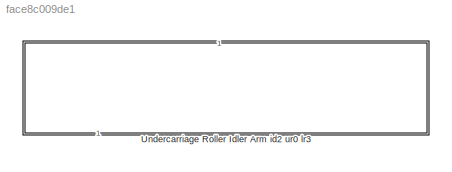
MODEL slx_face8c009de1
KIND library
CONFIG SolverName = VariableStepAuto
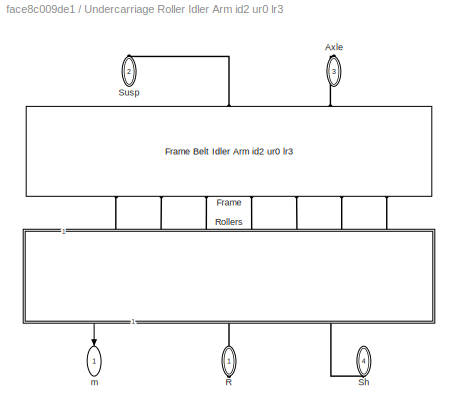
BLOCK [SubSystem] Undercarriage Roller Idler Arm id2 ur0 lr3
  NameLocation = left
BLOCK [PMIOPort] Undercarriage Roller Idler Arm id2 ur0 lr3/Axle
  NameLocation = left
  Port = 3
  Side = Right
BLOCK [Reference] Undercarriage Roller Idler Arm id2 ur0 lr3/Frame  REF=sm_trackV_lib_frame_idlerArm_i2u0l3/Frame Belt
Idler Arm
id2 ur0 lr3
  NameLocation = left
  SourceBlock = sm_trackV_lib_frame_idlerArm_i2u0l3/Frame Belt\nIdler Arm\nid2 ur0 lr3
  SourceType = Frame for Sprocket, Rollers (3), Fixed Idler, Idler Arm
BLOCK [PMIOPort] Undercarriage Roller Idler Arm id2 ur0 lr3/R
  NameLocation = left
  Side = Right
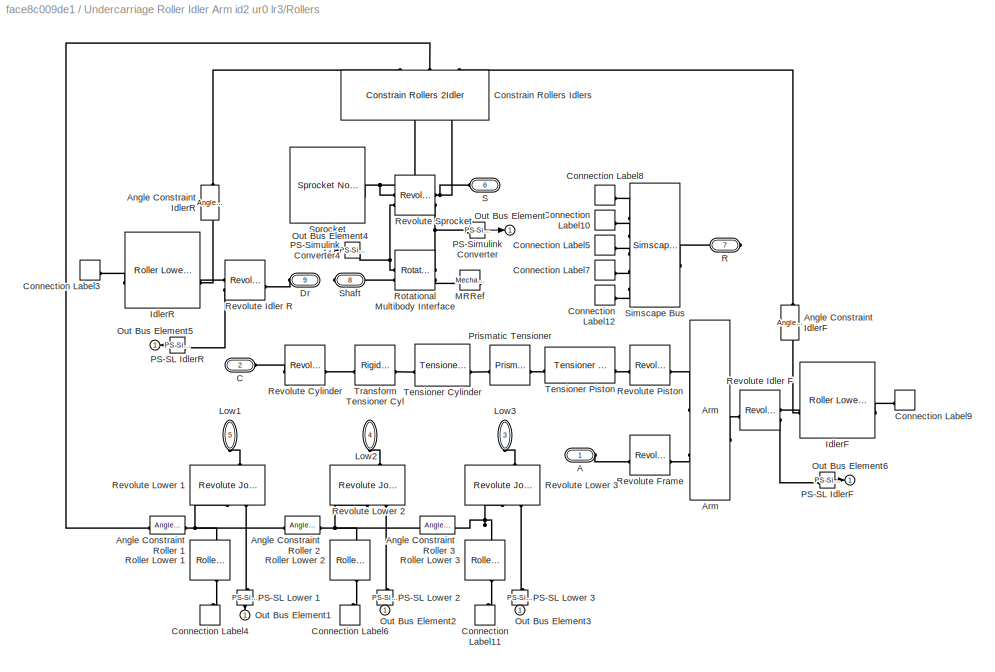
BLOCK [SubSystem] Undercarriage Roller Idler Arm id2 ur0 lr3/Rollers
  NameLocation = right
BLOCK [PMIOPort] Undercarriage Roller Idler Arm id2 ur0 lr3/Rollers/A
  Side = Left
BLOCK [Reference] Undercarriage Roller Idler Arm id2 ur0 lr3/Rollers/Angle Constraint IdlerF  REF=sm_rollerV_lib_underc_elem/Angle
Constraint
  NameLocation = right
  SourceBlock = sm_rollerV_lib_underc_elem/Angle\nConstraint
  SourceType = SubSystem
BLOCK [Reference] Undercarriage Roller Idler Arm id2 ur0 lr3/Rollers/Angle Constraint IdlerR  REF=sm_rollerV_lib_underc_elem/Angle
Constraint
  NameLocation = left
  SourceBlock = sm_rollerV_lib_underc_elem/Angle\nConstraint
  SourceType = SubSystem
BLOCK [Reference] Undercarriage Roller Idler Arm id2 ur0 lr3/Rollers/Angle Constraint Roller 1  REF=sm_rollerV_lib_underc_elem/Angle
Constraint
  SourceBlock = sm_rollerV_lib_underc_elem/Angle\nConstraint
  SourceType = SubSystem
BLOCK [Reference] Undercarriage Roller Idler Arm id2 ur0 lr3/Rollers/Angle Constraint Roller 2  REF=sm_rollerV_lib_underc_elem/Angle
Constraint
  SourceBlock = sm_rollerV_lib_underc_elem/Angle\nConstraint
  SourceType = SubSystem
BLOCK [Reference] Undercarriage Roller Idler Arm id2 ur0 lr3/Rollers/Angle Constraint Roller 3  REF=sm_rollerV_lib_underc_elem/Angle
Constraint
  SourceBlock = sm_rollerV_lib_underc_elem/Angle\nConstraint
  SourceType = SubSystem
BLOCK [Reference] Undercarriage Roller Idler Arm id2 ur0 lr3/Rollers/Arm  REF=sm_trackV_lib_belt_underc_elem/Arm
  SourceBlock = sm_trackV_lib_belt_underc_elem/Arm
  SourceType = Idler Arm, Tracked Vehicle
BLOCK [PMIOPort] Undercarriage Roller Idler Arm id2 ur0 lr3/Rollers/C
  Port = 2
  Side = Left
BLOCK [ConnectionLabel] Undercarriage Roller Idler Arm id2 ur0 lr3/Rollers/Connection Label10
  Label = A
BLOCK [ConnectionLabel] Undercarriage Roller Idler Arm id2 ur0 lr3/Rollers/Connection Label11
  Label = L3
  NameLocation = left
BLOCK [ConnectionLabel] Undercarriage Roller Idler Arm id2 ur0 lr3/Rollers/Connection Label12
  Label = L3
BLOCK [ConnectionLabel] Undercarriage Roller Idler Arm id2 ur0 lr3/Rollers/Connection Label3
  Label = X
BLOCK [ConnectionLabel] Undercarriage Roller Idler Arm id2 ur0 lr3/Rollers/Connection Label4
  Label = L1
  NameLocation = left
BLOCK [ConnectionLabel] Undercarriage Roller Idler Arm id2 ur0 lr3/Rollers/Connection Label5
  Label = L1
BLOCK [ConnectionLabel] Undercarriage Roller Idler Arm id2 ur0 lr3/Rollers/Connection Label6
  Label = L2
  NameLocation = left
BLOCK [ConnectionLabel] Undercarriage Roller Idler Arm id2 ur0 lr3/Rollers/Connection Label7
  Label = L2
BLOCK [ConnectionLabel] Undercarriage Roller Idler Arm id2 ur0 lr3/Rollers/Connection Label8
  Label = X
BLOCK [ConnectionLabel] Undercarriage Roller Idler Arm id2 ur0 lr3/Rollers/Connection Label9
  Label = A
BLOCK [Reference] Undercarriage Roller Idler Arm id2 ur0 lr3/Rollers/Constrain Rollers Idlers  REF=sm_rollerV_lib_underc_elem/Constrain
Rollers
2Idler
  NameLocation = left
  SourceBlock = sm_rollerV_lib_underc_elem/Constrain\nRollers\n2Idler
  SourceType = Constrain Sprocket, Lower Rollers, and Idler
BLOCK [PMIOPort] Undercarriage Roller Idler Arm id2 ur0 lr3/Rollers/Dr
  Port = 9
  Side = Left
BLOCK [Reference] Undercarriage Roller Idler Arm id2 ur0 lr3/Rollers/IdlerF  REF=sm_rollerV_lib_underc_elem/Roller Lower
Point Cloud
  LibrarySourceBlock = sm_chain_drive_lib/Pulley_Bot
  SourceBlock = sm_rollerV_lib_underc_elem/Roller Lower\nPoint Cloud
  SourceType = Lower Roller
BLOCK [Reference] Undercarriage Roller Idler Arm id2 ur0 lr3/Rollers/IdlerR  REF=sm_rollerV_lib_underc_elem/Roller Lower
Point Cloud
  LibrarySourceBlock = sm_chain_drive_lib/Pulley_Bot
  SourceBlock = sm_rollerV_lib_underc_elem/Roller Lower\nPoint Cloud
  SourceType = Lower Roller
BLOCK [PMIOPort] Undercarriage Roller Idler Arm id2 ur0 lr3/Rollers/Low1
  NameLocation = left
  Port = 5
  Side = Left
BLOCK [PMIOPort] Undercarriage Roller Idler Arm id2 ur0 lr3/Rollers/Low2
  NameLocation = left
  Port = 4
  Side = Left
BLOCK [PMIOPort] Undercarriage Roller Idler Arm id2 ur0 lr3/Rollers/Low3
  NameLocation = left
  Port = 3
  Side = Left
BLOCK [Reference] Undercarriage Roller Idler Arm id2 ur0 lr3/Rollers/MRRef  REF=fl_lib/Mechanical/Rotational Elements/Mechanical
Rotational Reference
  NameLocation = right
  SourceBlock = fl_lib/Mechanical/Rotational Elements/Mechanical\nRotational Reference
  SourceType = Mechanical\nRotational Reference
BLOCK [Outport] Undercarriage Roller Idler Arm id2 ur0 lr3/Rollers/Out Bus Element
  NameLocation = top
BLOCK [Outport] Undercarriage Roller Idler Arm id2 ur0 lr3/Rollers/Out Bus Element1
  NameLocation = right
BLOCK [Outport] Undercarriage Roller Idler Arm id2 ur0 lr3/Rollers/Out Bus Element2
  NameLocation = right
BLOCK [Outport] Undercarriage Roller Idler Arm id2 ur0 lr3/Rollers/Out Bus Element3
  NameLocation = right
BLOCK [Outport] Undercarriage Roller Idler Arm id2 ur0 lr3/Rollers/Out Bus Element4
  NameLocation = top
BLOCK [Outport] Undercarriage Roller Idler Arm id2 ur0 lr3/Rollers/Out Bus Element5
  NameLocation = top
BLOCK [Outport] Undercarriage Roller Idler Arm id2 ur0 lr3/Rollers/Out Bus Element6
  NameLocation = top
BLOCK [Reference] Undercarriage Roller Idler Arm id2 ur0 lr3/Rollers/PS-SL IdlerF  REF=nesl_utility/PS-Simulink
Converter
  SourceBlock = nesl_utility/PS-Simulink\nConverter
  SourceType = PS-Simulink\nConverter
BLOCK [Reference] Undercarriage Roller Idler Arm id2 ur0 lr3/Rollers/PS-SL IdlerR  REF=nesl_utility/PS-Simulink
Converter
  SourceBlock = nesl_utility/PS-Simulink\nConverter
  SourceType = PS-Simulink\nConverter
BLOCK [Reference] Undercarriage Roller Idler Arm id2 ur0 lr3/Rollers/PS-SL Lower 1  REF=nesl_utility/PS-Simulink
Converter
  NameLocation = left
  SourceBlock = nesl_utility/PS-Simulink\nConverter
  SourceType = PS-Simulink\nConverter
BLOCK [Reference] Undercarriage Roller Idler Arm id2 ur0 lr3/Rollers/PS-SL Lower 2  REF=nesl_utility/PS-Simulink
Converter
  NameLocation = left
  SourceBlock = nesl_utility/PS-Simulink\nConverter
  SourceType = PS-Simulink\nConverter
BLOCK [Reference] Undercarriage Roller Idler Arm id2 ur0 lr3/Rollers/PS-SL Lower 3  REF=nesl_utility/PS-Simulink
Converter
  NameLocation = left
  SourceBlock = nesl_utility/PS-Simulink\nConverter
  SourceType = PS-Simulink\nConverter
BLOCK [Reference] Undercarriage Roller Idler Arm id2 ur0 lr3/Rollers/PS-Simulink Converter  REF=nesl_utility/PS-Simulink
Converter
  SourceBlock = nesl_utility/PS-Simulink\nConverter
  SourceType = PS-Simulink\nConverter
BLOCK [Reference] Undercarriage Roller Idler Arm id2 ur0 lr3/Rollers/PS-Simulink Converter4  REF=nesl_utility/PS-Simulink
Converter
  SourceBlock = nesl_utility/PS-Simulink\nConverter
  SourceType = PS-Simulink\nConverter
BLOCK [Reference] Undercarriage Roller Idler Arm id2 ur0 lr3/Rollers/Prismatic Tensioner  REF=sm_lib/Joints/Prismatic
Joint
  SourceBlock = sm_lib/Joints/Prismatic\nJoint
  SourceType = Prismatic\nJoint
BLOCK [PMIOPort] Undercarriage Roller Idler Arm id2 ur0 lr3/Rollers/R
  Port = 7
  Side = Right
BLOCK [Reference] Undercarriage Roller Idler Arm id2 ur0 lr3/Rollers/Revolute Cylinder  REF=sm_lib/Joints/Revolute Joint
  SourceBlock = sm_lib/Joints/Revolute Joint
  SourceType = Revolute Joint
BLOCK [Reference] Undercarriage Roller Idler Arm id2 ur0 lr3/Rollers/Revolute Frame  REF=sm_lib/Joints/Revolute Joint
  SourceBlock = sm_lib/Joints/Revolute Joint
  SourceType = Revolute Joint
BLOCK [Reference] Undercarriage Roller Idler Arm id2 ur0 lr3/Rollers/Revolute Idler F  REF=sm_lib/Joints/Revolute Joint
  SourceBlock = sm_lib/Joints/Revolute Joint
  SourceType = Revolute Joint
BLOCK [Reference] Undercarriage Roller Idler Arm id2 ur0 lr3/Rollers/Revolute Idler R  REF=sm_lib/Joints/Revolute Joint
  SourceBlock = sm_lib/Joints/Revolute Joint
  SourceType = Revolute Joint
BLOCK [Reference] Undercarriage Roller Idler Arm id2 ur0 lr3/Rollers/Revolute Lower 1  REF=sm_lib/Joints/Revolute Joint
  NameLocation = left
  SourceBlock = sm_lib/Joints/Revolute Joint
  SourceType = Revolute Joint
BLOCK [Reference] Undercarriage Roller Idler Arm id2 ur0 lr3/Rollers/Revolute Lower 2  REF=sm_lib/Joints/Revolute Joint
  NameLocation = left
  SourceBlock = sm_lib/Joints/Revolute Joint
  SourceType = Revolute Joint
BLOCK [Reference] Undercarriage Roller Idler Arm id2 ur0 lr3/Rollers/Revolute Lower 3  REF=sm_lib/Joints/Revolute Joint
  NameLocation = left
  SourceBlock = sm_lib/Joints/Revolute Joint
  SourceType = Revolute Joint
BLOCK [Reference] Undercarriage Roller Idler Arm id2 ur0 lr3/Rollers/Revolute Piston  REF=sm_lib/Joints/Revolute Joint
  SourceBlock = sm_lib/Joints/Revolute Joint
  SourceType = Revolute Joint
BLOCK [Reference] Undercarriage Roller Idler Arm id2 ur0 lr3/Rollers/Revolute Sprocket  REF=sm_lib/Joints/Revolute Joint
  SourceBlock = sm_lib/Joints/Revolute Joint
  SourceType = Revolute Joint
BLOCK [Reference] Undercarriage Roller Idler Arm id2 ur0 lr3/Rollers/Roller Lower 1  REF=sm_rollerV_lib_underc_elem/Roller Lower
Point Cloud
  LibrarySourceBlock = sm_chain_drive_lib/Pulley_Bot
  NameLocation = left
  SourceBlock = sm_rollerV_lib_underc_elem/Roller Lower\nPoint Cloud
  SourceType = Lower Roller
BLOCK [Reference] Undercarriage Roller Idler Arm id2 ur0 lr3/Rollers/Roller Lower 2  REF=sm_rollerV_lib_underc_elem/Roller Lower
Point Cloud
  LibrarySourceBlock = sm_chain_drive_lib/Pulley_Bot
  NameLocation = left
  SourceBlock = sm_rollerV_lib_underc_elem/Roller Lower\nPoint Cloud
  SourceType = Lower Roller
BLOCK [Reference] Undercarriage Roller Idler Arm id2 ur0 lr3/Rollers/Roller Lower 3  REF=sm_rollerV_lib_underc_elem/Roller Lower
Point Cloud
  LibrarySourceBlock = sm_chain_drive_lib/Pulley_Bot
  NameLocation = left
  SourceBlock = sm_rollerV_lib_underc_elem/Roller Lower\nPoint Cloud
  SourceType = Lower Roller
BLOCK [Reference] Undercarriage Roller Idler Arm id2 ur0 lr3/Rollers/Rotational Multibody Interface  REF=fl_lib/Mechanical/Multibody Interfaces/Rotational Multibody
Interface
  SourceBlock = fl_lib/Mechanical/Multibody Interfaces/Rotational Multibody\nInterface
  SourceType = Rotational Multibody\nInterface
BLOCK [PMIOPort] Undercarriage Roller Idler Arm id2 ur0 lr3/Rollers/S
  NameLocation = top
  Port = 6
  Side = Left
BLOCK [PMIOPort] Undercarriage Roller Idler Arm id2 ur0 lr3/Rollers/Shaft
  Port = 8
  Side = Right
BLOCK [SimscapeBus] Undercarriage Roller Idler Arm id2 ur0 lr3/Rollers/Simscape Bus
  HierarchyStrings = P1;P2;P3;P4;P5
BLOCK [Reference] Undercarriage Roller Idler Arm id2 ur0 lr3/Rollers/Sprocket  REF=sm_trackV_lib_belt_underc_elem/Sprocket
No Contact
  SourceBlock = sm_trackV_lib_belt_underc_elem/Sprocket\nNo Contact
  SourceType = Sprocket Wheel, Belt Track, Planar Contact
BLOCK [Reference] Undercarriage Roller Idler Arm id2 ur0 lr3/Rollers/Tensioner Cylinder  REF=sm_trackV_lib_belt_underc_elem/Tensioner Cyl
Roller Frame
  SourceBlock = sm_trackV_lib_belt_underc_elem/Tensioner Cyl\nRoller Frame
  SourceType = Tensioner Cylinder
BLOCK [Reference] Undercarriage Roller Idler Arm id2 ur0 lr3/Rollers/Tensioner Piston  REF=sm_trackV_lib_belt_underc_elem/Tensioner Piston
Roller Frame
  SourceBlock = sm_trackV_lib_belt_underc_elem/Tensioner Piston\nRoller Frame
  SourceType = Tensioner Piston and Bracket
BLOCK [Reference] Undercarriage Roller Idler Arm id2 ur0 lr3/Rollers/Transform Tensioner Cyl  REF=sm_lib/Frames and
Transforms/Rigid
Transform
  SourceBlock = sm_lib/Frames and\nTransforms/Rigid\nTransform
  SourceType = Rigid\nTransform
BLOCK [PMIOPort] Undercarriage Roller Idler Arm id2 ur0 lr3/Sh
  NameLocation = left
  Port = 4
  Side = Right
BLOCK [PMIOPort] Undercarriage Roller Idler Arm id2 ur0 lr3/Susp
  NameLocation = left
  Port = 2
  Side = Right
BLOCK [Outport] Undercarriage Roller Idler Arm id2 ur0 lr3/m
  NameLocation = left
LINE Undercarriage Roller Idler Arm id2 ur0 lr3/Rollers:1 -> Undercarriage Roller Idler Arm id2 ur0 lr3/m:1
PLINE Undercarriage Roller Idler Arm id2 ur0 lr3/Axle:RConn1 -- Undercarriage Roller Idler Arm id2 ur0 lr3/Frame:LConn2
PLINE Undercarriage Roller Idler Arm id2 ur0 lr3/Frame:LConn1 -- Undercarriage Roller Idler Arm id2 ur0 lr3/Susp:RConn1
PLINE Undercarriage Roller Idler Arm id2 ur0 lr3/Frame:RConn1 -- Undercarriage Roller Idler Arm id2 ur0 lr3/Rollers:LConn1
PLINE Undercarriage Roller Idler Arm id2 ur0 lr3/Frame:RConn2 -- Undercarriage Roller Idler Arm id2 ur0 lr3/Rollers:LConn2
PLINE Undercarriage Roller Idler Arm id2 ur0 lr3/Frame:RConn3 -- Undercarriage Roller Idler Arm id2 ur0 lr3/Rollers:LConn3
PLINE Undercarriage Roller Idler Arm id2 ur0 lr3/Frame:RConn4 -- Undercarriage Roller Idler Arm id2 ur0 lr3/Rollers:LConn4
PLINE Undercarriage Roller Idler Arm id2 ur0 lr3/Frame:RConn5 -- Undercarriage Roller Idler Arm id2 ur0 lr3/Rollers:LConn5
PLINE Undercarriage Roller Idler Arm id2 ur0 lr3/Frame:RConn6 -- Undercarriage Roller Idler Arm id2 ur0 lr3/Rollers:LConn6
PLINE Undercarriage Roller Idler Arm id2 ur0 lr3/Frame:RConn7 -- Undercarriage Roller Idler Arm id2 ur0 lr3/Rollers:LConn7
PLINE Undercarriage Roller Idler Arm id2 ur0 lr3/R:RConn1 -- Undercarriage Roller Idler Arm id2 ur0 lr3/Rollers:RConn1
PLINE Undercarriage Roller Idler Arm id2 ur0 lr3/Rollers:RConn2 -- Undercarriage Roller Idler Arm id2 ur0 lr3/Sh:RConn1
